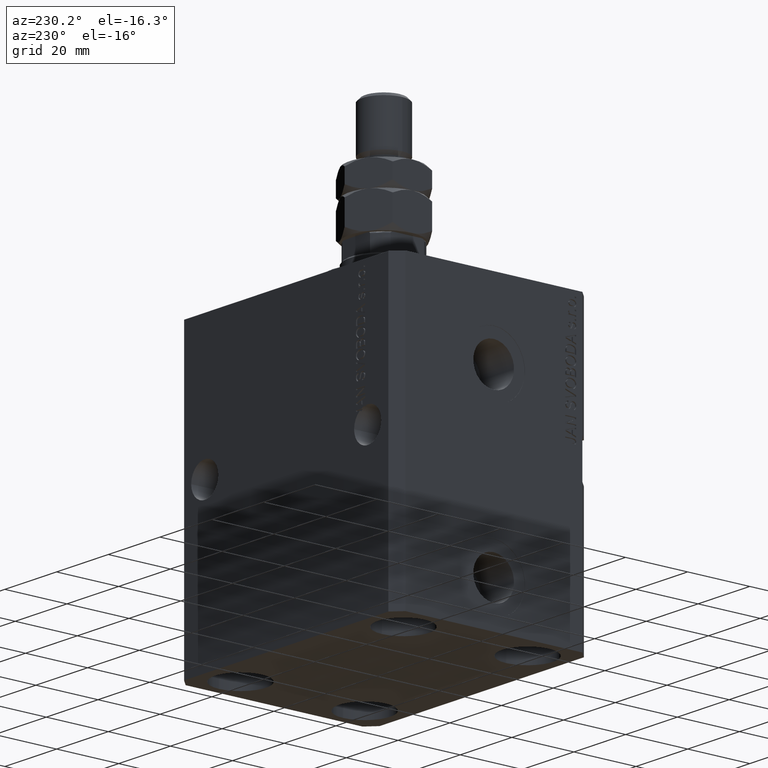
[diagram: clean part render]
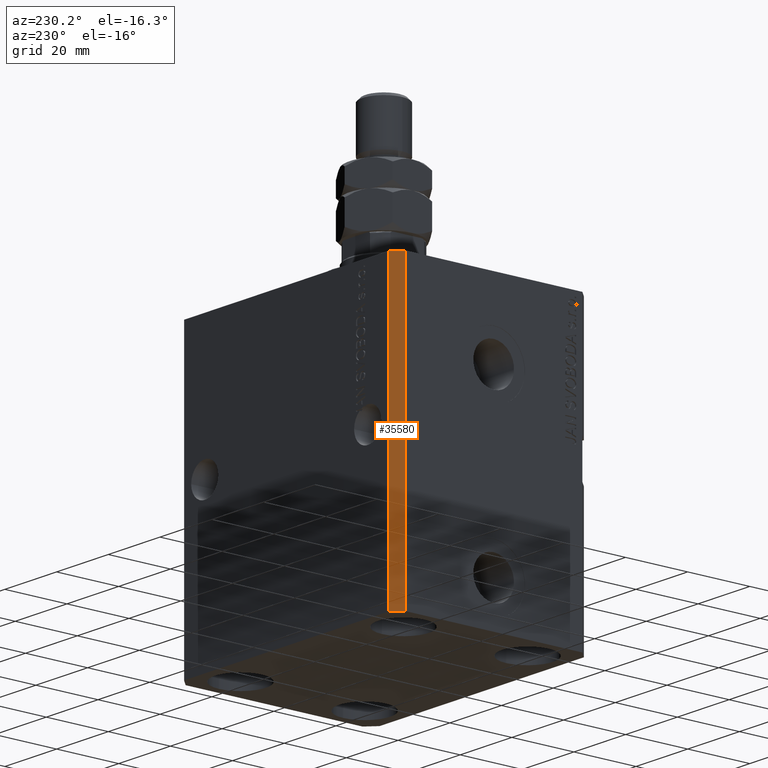
[diagram: same view with one face highlighted and labeled with its STEP entity id]
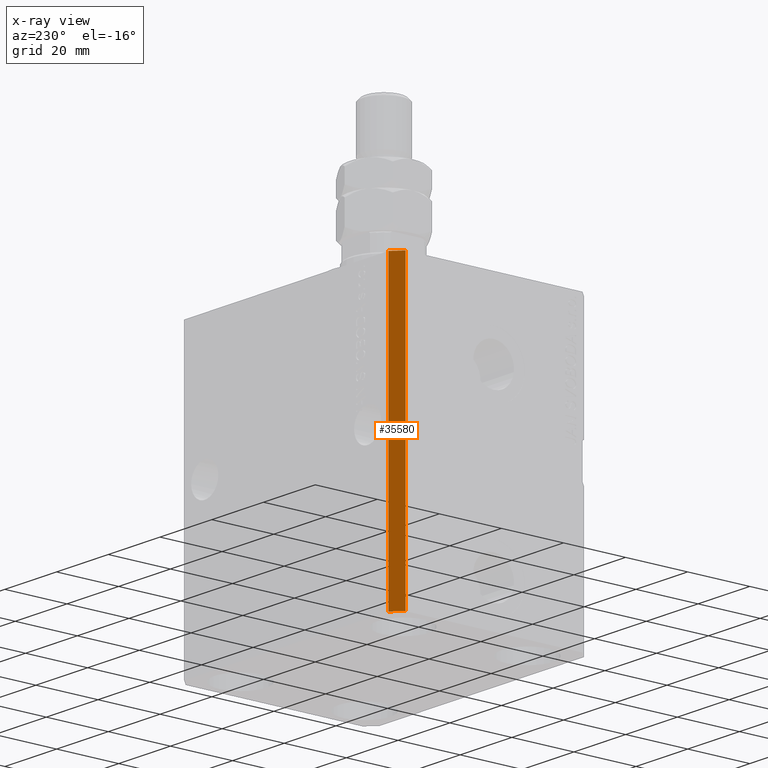
[diagram: x-ray of the same camera — body ghosted, the highlighted face saturated]
A machine part, auxiliary view. The second image highlights one B-rep face of the part: STEP entity #35580.
The next image is the same camera in x-ray: the body ghosted, the highlighted face saturated — about 0% of this face is hidden behind the body in this view.
In plain terms, the highlighted planar face has unit normal (-0.7071, 0.7071, 0).
Its self-contained STEP definition (entity closure, byte-faithful):
#511 = CARTESIAN_POINT ( 'NONE',  ( -42.50000000000000000, 28.50000000000000000, -93.00000000000000000 ) ) ;
#1970 = VECTOR ( 'NONE', #21159, 1000.000000000000000 ) ;
#5573 = CARTESIAN_POINT ( 'NONE',  ( -39.50000000000000711, 31.50000000000000000, -93.00000000000000000 ) ) ;
#6031 = DIRECTION ( 'NONE',  ( -0.7071067811865471286, -0.7071067811865479058, 0.000000000000000000 ) ) ;
#7683 = LINE ( 'NONE', #21975, #22412 ) ;
#7840 = ORIENTED_EDGE ( 'NONE', *, *, #36675, .T. ) ;
#8511 = FACE_OUTER_BOUND ( 'NONE', #11757, .T. ) ;
#8738 = DIRECTION ( 'NONE',  ( -0.7071067811865479058, 0.7071067811865471286, 0.000000000000000000 ) ) ;
#11157 = CARTESIAN_POINT ( 'NONE',  ( -39.50000000000000711, 31.50000000000000000, 0.000000000000000000 ) ) ;
#11351 = DIRECTION ( 'NONE',  ( -0.7071067811865471286, -0.7071067811865479058, 0.000000000000000000 ) ) ;
#11757 = EDGE_LOOP ( 'NONE', ( #39256, #36048, #7840, #20258 ) ) ;
#13709 = EDGE_CURVE ( 'NONE', #20031, #27873, #14377, .T. ) ;
#13899 = EDGE_CURVE ( 'NONE', #34462, #46020, #30029, .T. ) ;
#14377 = LINE ( 'NONE', #511, #1970 ) ;
#17728 = VECTOR ( 'NONE', #36837, 1000.000000000000000 ) ;
#19416 = LINE ( 'NONE', #5573, #26033 ) ;
#20031 = VERTEX_POINT ( 'NONE', #26691 ) ;
#20258 = ORIENTED_EDGE ( 'NONE', *, *, #13709, .T. ) ;
#21159 = DIRECTION ( 'NONE',  ( 0.000000000000000000, 0.000000000000000000, 1.000000000000000000 ) ) ;
#21975 = CARTESIAN_POINT ( 'NONE',  ( -39.50000000000000711, 31.50000000000000000, 0.000000000000000000 ) ) ;
#22412 = VECTOR ( 'NONE', #28542, 1000.000000000000000 ) ;
#26033 = VECTOR ( 'NONE', #6031, 1000.000000000000000 ) ;
#26691 = CARTESIAN_POINT ( 'NONE',  ( -42.50000000000000000, 28.50000000000000000, -93.00000000000000000 ) ) ;
#27873 = VERTEX_POINT ( 'NONE', #31200 ) ;
#28542 = DIRECTION ( 'NONE',  ( -0.7071067811865471286, -0.7071067811865479058, 0.000000000000000000 ) ) ;
#30029 = LINE ( 'NONE', #36618, #17728 ) ;
#31200 = CARTESIAN_POINT ( 'NONE',  ( -42.50000000000000000, 28.50000000000000000, 0.000000000000000000 ) ) ;
#34462 = VERTEX_POINT ( 'NONE', #39947 ) ;
#35580 = ADVANCED_FACE ( 'NONE', ( #8511 ), #36658, .T. ) ;
#36048 = ORIENTED_EDGE ( 'NONE', *, *, #13899, .F. ) ;
#36618 = CARTESIAN_POINT ( 'NONE',  ( -39.50000000000000711, 31.50000000000000000, -93.00000000000000000 ) ) ;
#36658 = PLANE ( 'NONE',  #39593 ) ;
#36675 = EDGE_CURVE ( 'NONE', #34462, #20031, #19416, .T. ) ;
#36837 = DIRECTION ( 'NONE',  ( 0.000000000000000000, 0.000000000000000000, 1.000000000000000000 ) ) ;
#38810 = EDGE_CURVE ( 'NONE', #46020, #27873, #7683, .T. ) ;
#39256 = ORIENTED_EDGE ( 'NONE', *, *, #38810, .F. ) ;
#39593 = AXIS2_PLACEMENT_3D ( 'NONE', #43714, #8738, #11351 ) ;
#39947 = CARTESIAN_POINT ( 'NONE',  ( -39.50000000000000711, 31.50000000000000000, -93.00000000000000000 ) ) ;
#43714 = CARTESIAN_POINT ( 'NONE',  ( -39.50000000000000711, 31.50000000000000000, -93.00000000000000000 ) ) ;
#46020 = VERTEX_POINT ( 'NONE', #11157 ) ;